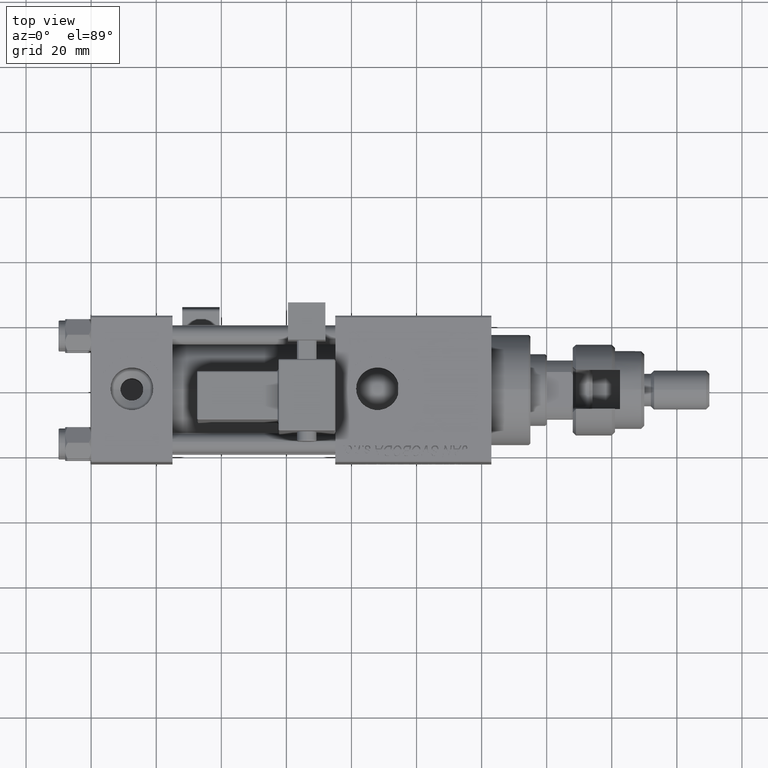
[diagram: clean part render]
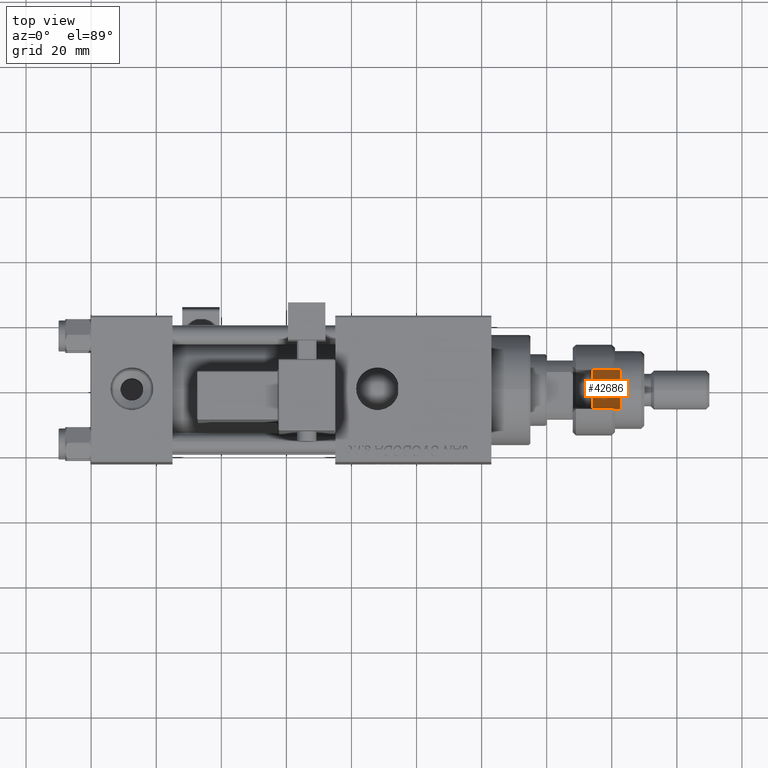
[diagram: same view with one face highlighted and labeled with its STEP entity id]
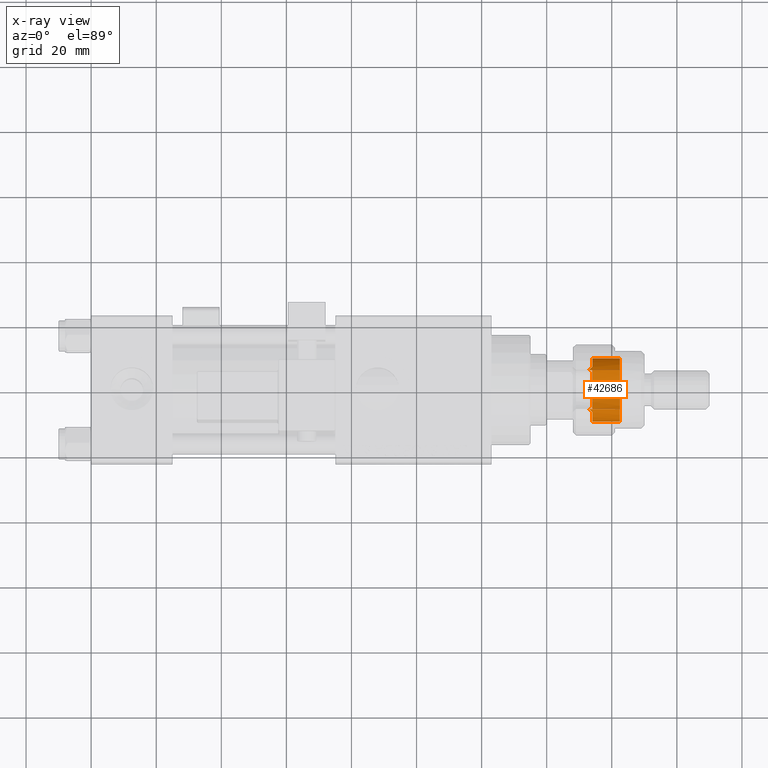
[diagram: x-ray of the same camera — body ghosted, the highlighted face saturated]
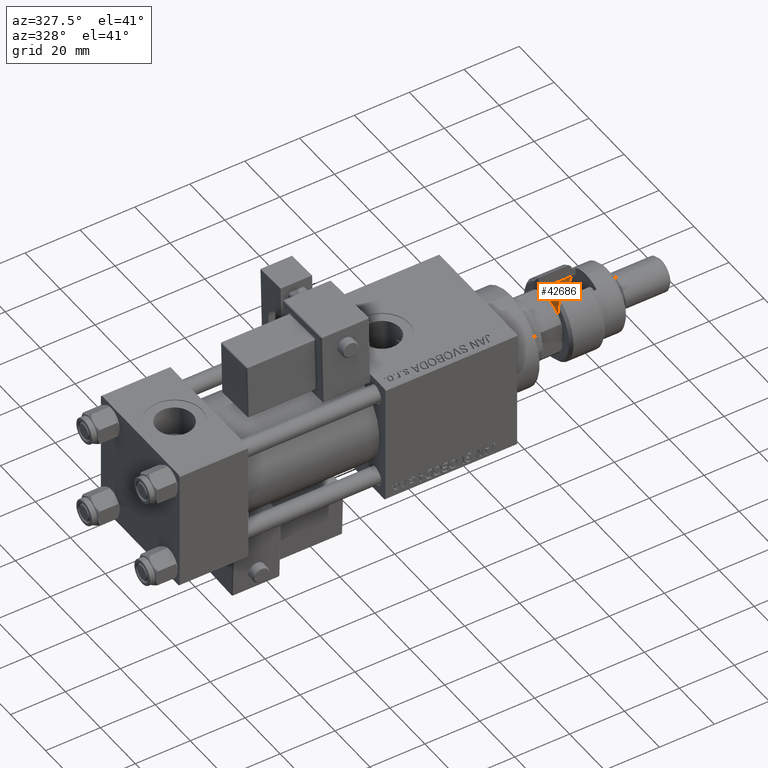
[diagram: same view with one face highlighted and labeled with its STEP entity id]
A machine part, top view. The second image highlights one B-rep face of the part: STEP entity #42686.
The next image is the same camera in x-ray: the body ghosted, the highlighted face saturated — about 0% of this face is hidden behind the body in this view.
A second angle (auxiliary view) of the same face is appended — the face is thin or edge-on in the first view.
In plain terms, the highlighted cylindrical surface (edge-blend (fillet) strip) has radius 9.75 mm, axis along (-1, -0, 0).
Its self-contained STEP definition (entity closure, byte-faithful):
#2292 = EDGE_LOOP ( 'NONE', ( #38837, #34495, #51330, #52361, #54127, #48776 ) ) ;
#2550 = AXIS2_PLACEMENT_3D ( 'NONE', #45520, #24090, #41321 ) ;
#3260 = AXIS2_PLACEMENT_3D ( 'NONE', #27713, #24870, #16683 ) ;
#3770 = CARTESIAN_POINT ( 'NONE',  ( -7.409039628782072562, 6.353741962603316473, 5.353741962603319138 ) ) ;
#3877 =( BOUNDED_CURVE ( )  B_SPLINE_CURVE ( 3, ( #30693, #47881, #4459, #43650 ),
 .UNSPECIFIED., .F., .F. ) 
 B_SPLINE_CURVE_WITH_KNOTS ( ( 4, 4 ),
 ( 3.911537995517534672, 4.049515156734553756 ),
 .UNSPECIFIED. ) 
 CURVE ( )  GEOMETRIC_REPRESENTATION_ITEM ( )  RATIONAL_B_SPLINE_CURVE ( ( 1.000000000000000000, 0.9984141543742587332, 0.9984141543742587332, 1.000000000000000000 ) ) 
 REPRESENTATION_ITEM ( '' )  );
#4459 = CARTESIAN_POINT ( 'NONE',  ( -7.409039628782069009, -6.353741962603319138, 5.353741962603322690 ) ) ;
#4501 = VERTEX_POINT ( 'NONE', #39891 ) ;
#4662 = EDGE_CURVE ( 'NONE', #21216, #31668, #32831, .T. ) ;
#6458 = VECTOR ( 'NONE', #19541, 1000.000000000000000 ) ;
#8783 = CARTESIAN_POINT ( 'NONE',  ( -6.786935980249112710, 7.000000000000000888, 6.000000000000000000 ) ) ;
#12487 = VERTEX_POINT ( 'NONE', #36691 ) ;
#12782 = CARTESIAN_POINT ( 'NONE',  ( -7.685213074469698036, 6.000000000000000000, 5.000000000000004441 ) ) ;
#14816 = CARTESIAN_POINT ( 'NONE',  ( -6.786935980249112710, -7.000000000000000888, 6.000000000000000000 ) ) ;
#16078 = DIRECTION ( 'NONE',  ( 0.000000000000000000, 0.000000000000000000, -1.000000000000000000 ) ) ;
#16189 = VERTEX_POINT ( 'NONE', #8783 ) ;
#16683 = DIRECTION ( 'NONE',  ( -1.000000000000000000, 0.000000000000000000, 0.000000000000000000 ) ) ;
#18962 = CYLINDRICAL_SURFACE ( 'NONE', #3260, 9.750000000000000000 ) ;
#19541 = DIRECTION ( 'NONE',  ( -0.000000000000000000, -0.000000000000000000, -1.000000000000000000 ) ) ;
#21216 = VERTEX_POINT ( 'NONE', #54624 ) ;
#23001 = CARTESIAN_POINT ( 'NONE',  ( -7.685213074469698036, -6.000000000000000000, 5.000000000000004441 ) ) ;
#23066 = EDGE_CURVE ( 'NONE', #21216, #4501, #44899, .T. ) ;
#24090 = DIRECTION ( 'NONE',  ( -0.000000000000000000, -0.000000000000000000, 1.000000000000000000 ) ) ;
#24870 = DIRECTION ( 'NONE',  ( -0.000000000000000000, -0.000000000000000000, -1.000000000000000000 ) ) ;
#27186 = CARTESIAN_POINT ( 'NONE',  ( -7.685213074469698036, -6.000000000000000000, 42.07716446627534879 ) ) ;
#27713 = CARTESIAN_POINT ( 'NONE',  ( 0.000000000000000000, 0.000000000000000000, 42.07716446627534879 ) ) ;
#30290 = EDGE_CURVE ( 'NONE', #42018, #31668, #3877, .T. ) ;
#30635 = CARTESIAN_POINT ( 'NONE',  ( 0.000000000000000000, 0.000000000000000000, 6.000000000000000000 ) ) ;
#30693 = CARTESIAN_POINT ( 'NONE',  ( -6.786935980249112710, -7.000000000000000888, 6.000000000000000000 ) ) ;
#31668 = VERTEX_POINT ( 'NONE', #23001 ) ;
#32831 = LINE ( 'NONE', #27186, #6458 ) ;
#33701 = CARTESIAN_POINT ( 'NONE',  ( -6.786935980249112710, 7.000000000000000888, 6.000000000000000000 ) ) ;
#34495 = ORIENTED_EDGE ( 'NONE', *, *, #49212, .T. ) ;
#35743 = DIRECTION ( 'NONE',  ( 0.000000000000000000, 0.000000000000000000, 1.000000000000000000 ) ) ;
#36201 = FACE_OUTER_BOUND ( 'NONE', #2292, .T. ) ;
#36691 = CARTESIAN_POINT ( 'NONE',  ( -7.685213074469698036, 6.000000000000000000, 5.000000000000004441 ) ) ;
#37523 = DIRECTION ( 'NONE',  ( -1.000000000000000000, 0.000000000000000000, 0.000000000000000000 ) ) ;
#38516 = AXIS2_PLACEMENT_3D ( 'NONE', #30635, #16078, #37523 ) ;
#38837 = ORIENTED_EDGE ( 'NONE', *, *, #47177, .F. ) ;
#39891 = CARTESIAN_POINT ( 'NONE',  ( -7.685213074469698036, 6.000000000000000000, 14.49999999999999822 ) ) ;
#41321 = DIRECTION ( 'NONE',  ( -1.000000000000000000, 0.000000000000000000, 0.000000000000000000 ) ) ;
#42018 = VERTEX_POINT ( 'NONE', #14816 ) ;
#42686 = ADVANCED_FACE ( 'NONE', ( #36201 ), #18962, .F. ) ;
#42687 = CARTESIAN_POINT ( 'NONE',  ( -7.109138333551347166, 6.687604750778876728, 5.687604750778877616 ) ) ;
#43650 = CARTESIAN_POINT ( 'NONE',  ( -7.685213074469698036, -6.000000000000000000, 5.000000000000004441 ) ) ;
#44793 = CIRCLE ( 'NONE', #38516, 9.750000000000000000 ) ;
#44899 = CIRCLE ( 'NONE', #2550, 9.750000000000000000 ) ;
#45520 = CARTESIAN_POINT ( 'NONE',  ( 0.000000000000000000, 0.000000000000000000, 14.49999999999999822 ) ) ;
#47177 = EDGE_CURVE ( 'NONE', #12487, #4501, #48963, .T. ) ;
#47881 = CARTESIAN_POINT ( 'NONE',  ( -7.109138333551345390, -6.687604750778879392, 5.687604750778881169 ) ) ;
#48776 = ORIENTED_EDGE ( 'NONE', *, *, #23066, .T. ) ;
#48963 = LINE ( 'NONE', #53195, #50254 ) ;
#49212 = EDGE_CURVE ( 'NONE', #12487, #16189, #55747, .T. ) ;
#49822 = EDGE_CURVE ( 'NONE', #16189, #42018, #44793, .T. ) ;
#50254 = VECTOR ( 'NONE', #35743, 1000.000000000000000 ) ;
#51330 = ORIENTED_EDGE ( 'NONE', *, *, #49822, .T. ) ;
#52361 = ORIENTED_EDGE ( 'NONE', *, *, #30290, .T. ) ;
#53195 = CARTESIAN_POINT ( 'NONE',  ( -7.685213074469698036, 6.000000000000000000, 42.07716446627534879 ) ) ;
#54127 = ORIENTED_EDGE ( 'NONE', *, *, #4662, .F. ) ;
#54624 = CARTESIAN_POINT ( 'NONE',  ( -7.685213074469696259, -6.000000000000000000, 14.50000000000000000 ) ) ;
#55747 =( BOUNDED_CURVE ( )  B_SPLINE_CURVE ( 3, ( #12782, #3770, #42687, #33701 ),
 .UNSPECIFIED., .F., .F. ) 
 B_SPLINE_CURVE_WITH_KNOTS ( ( 4, 4 ),
 ( 2.233670150445032032, 2.371647311662051560 ),
 .UNSPECIFIED. ) 
 CURVE ( )  GEOMETRIC_REPRESENTATION_ITEM ( )  RATIONAL_B_SPLINE_CURVE ( ( 1.000000000000000000, 0.9984141543742587332, 0.9984141543742587332, 1.000000000000000000 ) ) 
 REPRESENTATION_ITEM ( '' )  );